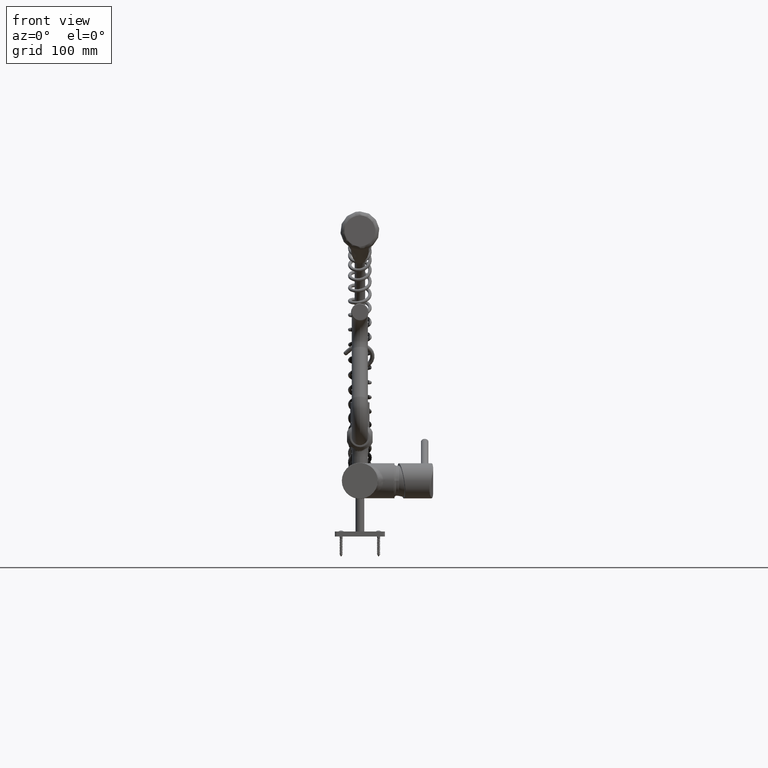
[diagram: clean part render]
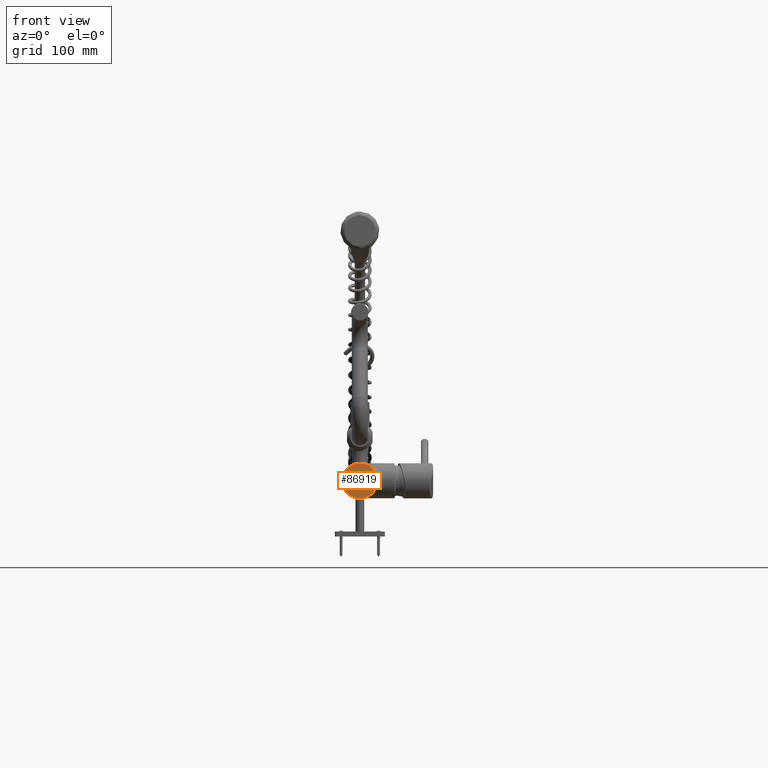
[diagram: same view with one face highlighted and labeled with its STEP entity id]
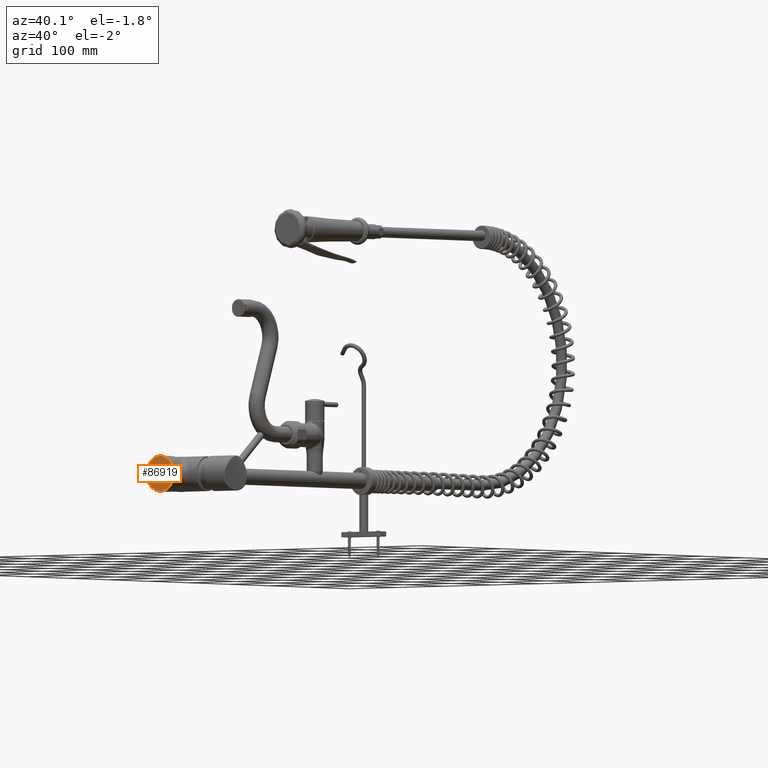
[diagram: same view with one face highlighted and labeled with its STEP entity id]
A machine part, front view. The second image highlights one B-rep face of the part: STEP entity #86919.
A second angle (auxiliary view) of the same face is appended — the face is thin or edge-on in the first view.
In plain terms, the highlighted planar face has unit normal (0, 1, 0).
Its self-contained STEP definition (entity closure, byte-faithful):
#47261=CARTESIAN_POINT('',(0.E0,0.E0,0.E0));
#47262=DIRECTION('',(0.E0,-1.E0,0.E0));
#47263=DIRECTION('',(1.E0,0.E0,0.E0));
#47264=AXIS2_PLACEMENT_3D('',#47261,#47262,#47263);
#47269=CARTESIAN_POINT('',(0.E0,0.E0,0.E0));
#47270=DIRECTION('',(0.E0,-1.E0,0.E0));
#47271=DIRECTION('',(-1.E0,0.E0,0.E0));
#47272=AXIS2_PLACEMENT_3D('',#47269,#47270,#47271);
#48879=CARTESIAN_POINT('',(2.84E1,0.E0,0.E0));
#48880=CARTESIAN_POINT('',(-2.84E1,0.E0,0.E0));
#48881=VERTEX_POINT('',#48879);
#48882=VERTEX_POINT('',#48880);
#86909=CARTESIAN_POINT('',(0.E0,0.E0,0.E0));
#86910=DIRECTION('',(0.E0,1.E0,0.E0));
#86911=DIRECTION('',(1.E0,0.E0,0.E0));
#86912=AXIS2_PLACEMENT_3D('',#86909,#86910,#86911);
#86913=PLANE('',#86912);
#86915=ORIENTED_EDGE('',*,*,#86914,.F.);
#86916=ORIENTED_EDGE('',*,*,#86892,.F.);
#86917=EDGE_LOOP('',(#86915,#86916));
#86918=FACE_OUTER_BOUND('',#86917,.F.);
#47265=CIRCLE('',#47264,2.84E1);
#47273=CIRCLE('',#47272,2.84E1);
#86892=EDGE_CURVE('',#48882,#48881,#47273,.T.);
#86914=EDGE_CURVE('',#48881,#48882,#47265,.T.);
#86919=ADVANCED_FACE('',(#86918),#86913,.F.);